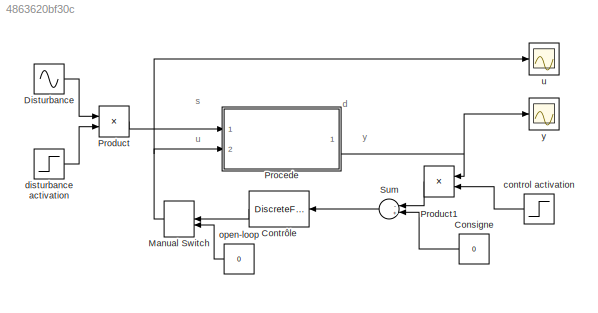
MODEL slx_4863620bf30c
KIND model
CONFIG AbsTol = auto
CONFIG EnableMultiTasking = off
CONFIG FixedStep = Te
CONFIG MaxStep = auto
CONFIG MinStep = auto
CONFIG RelTol = 1e-3
CONFIG SampleTimeConstraint = Unconstrained
CONFIG Solver = ode5
CONFIG SolverName = ode5
CONFIG StartTime = 0.0
CONFIG StopTime = 10
BLOCK [Constant] Consigne
  Value = 0
BLOCK [DiscreteFilter] Contrôle
  Denominator = S
  InputPortMap = u0
  Numerator = R
  Ports = [1, 1]
  SampleTime = Te
BLOCK [Sin] Disturbance
  Amplitude = 0.02
  Frequency = wd
  Ports = [0, 1]
  SampleTime = Te
BLOCK [ManualSwitch] Manual Switch
  CurrentSetting = 0
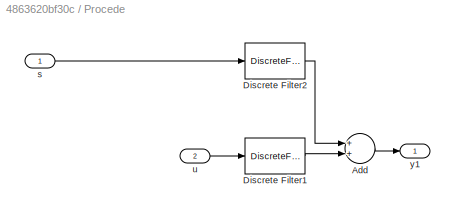
BLOCK [SubSystem] Procede
  Ports = [2, 1]
  RequestExecContextInheritance = off
BLOCK [Sum] Procede/Add
  InputSameDT = off
  OutDataTypeStr = Inherit: Inherit via internal rule
  Ports = [2, 1]
  SaturateOnIntegerOverflow = off
BLOCK [DiscreteFilter] Procede/Discrete Filter1
  Denominator = [1.0000\n   -1.7389\n    1.0408\n   -0.7931\n    2.5618\n   -2.8601\n    1.7853\n   -1.7239\n    2.0897\n   -1.2512\n    1.0092\n   -1.0000\n    0.5016\n    0.0120\n    0.0449]'
  InputPortMap = u0
  Numerator = [     0\n    1.0180\n   -2.1169\n    0.6843\n   -0.3008\n    2.9943\n   -3.0203\n    0.8812\n   -1.5539\n    2.2356\n   -0.7953\n    0.6724\n   -1.0735\n    0.1364\n    0.2454]'
  Ports = [1, 1]
  SampleTime = Te
BLOCK [DiscreteFilter] Procede/Discrete Filter2
  Denominator = [1.0000\n   -1.7389\n    1.0408\n   -0.7931\n    2.5618\n   -2.8601\n    1.7853\n   -1.7239\n    2.0897\n   -1.2512\n    1.0092\n   -1.0000\n    0.5016\n    0.0120\n    0.0449]'
  InputPortMap = u0
  Numerator = [     0\n    1.0180\n   -2.1169\n    0.6843\n   -0.3008\n    2.9943\n   -3.0203\n    0.8812\n   -1.5539\n    2.2356\n   -0.7953\n    0.6724\n   -1.0735\n    0.1364\n    0.2454]'
  Ports = [1, 1]
  SampleTime = Te
BLOCK [Inport] Procede/s
  IconDisplay = Port number
BLOCK [Inport] Procede/u
  IconDisplay = Port number
  Port = 2
BLOCK [Outport] Procede/y1
  IconDisplay = Port number
BLOCK [Product] Product
  InputSameDT = off
  OutDataTypeStr = Inherit: Inherit via internal rule
  Ports = [2, 1]
  SaturateOnIntegerOverflow = off
BLOCK [Product] Product1
  InputSameDT = off
  OutDataTypeStr = Inherit: Inherit via internal rule
  Ports = [2, 1]
  SaturateOnIntegerOverflow = off
BLOCK [Sum] Sum
  IconShape = round
  InputSameDT = off
  Inputs = -+|
  OutDataTypeStr = Inherit: Inherit via internal rule
  Ports = [2, 1]
  SaturateOnIntegerOverflow = off
BLOCK [Step] control activation
  SampleTime = 0
  Time = 4
BLOCK [Step] disturbance activation
  SampleTime = 0
  Time = 2
BLOCK [Constant] open-loop
  Value = 0
BLOCK [Scope] u
  ExtModeUploadOption = log
  Floating = off
  NumInputPorts = 1
  Ports = [1]
  ScopeSpecificationString = C++SS(StrPVP('Location','[6, 430, 1022, 732]'),StrPVP('Open','off'),MxPVP('AxesTitles',53,'struct(''axes1'',''%<SignalLabel>'')'),StrPVP('TimeRange','10'),StrPVP('YMin','-0.5'),StrPVP('YMax','0.5'),StrPVP('SaveToWorkspace','on'),StrPVP('SaveName','u'),StrPVP('DataFormat','Array'),StrPVP('MaxDataPoints','120000'),StrPVP('BlockParamSampleTime','0'),StrPVP('LimitDataPoints','on'),StrPVP('Decimation',...<+43ch>
BLOCK [Scope] y
  Floating = off
  NumInputPorts = 1
  Ports = [1]
  ScopeSpecificationString = Simulink.scopes.TimeScopeBlockCfg('CurrentConfiguration', extmgr.ConfigurationSet(extmgr.Configuration('Core','General UI',true),extmgr.Configuration('Core','Source UI',true),extmgr.Configuration('Sources','WiredSimulink',true,'DataLogging',true,'DataLoggingVariableName','y','DataLoggingSaveFormat','Array','DataLoggingMaxPoints','120000','DataLoggingLimitDataPoints',true,'DataLoggingDecimation','1...<+1756ch>
ANNOTATION (root): d
ANNOTATION (root): s
ANNOTATION (root): u
ANNOTATION (root): y
LINE Consigne:1 -> Sum:2
LINE Contrôle:1 -> Manual Switch:1
LINE Disturbance:1 -> Product:1
NET Manual Switch:1 -> Procede:2, u:1
LINE Procede/Add:1 -> Procede/y1:1
LINE Procede/Discrete Filter1:1 -> Procede/Add:2
LINE Procede/Discrete Filter2:1 -> Procede/Add:1
LINE Procede/s:1 -> Procede/Discrete Filter2:1
LINE Procede/u:1 -> Procede/Discrete Filter1:1
NET Procede:1 -> Product1:1, y:1
LINE Product1:1 -> Sum:1
LINE Product:1 -> Procede:1
LINE Sum:1 -> Contrôle:1
LINE control activation:1 -> Product1:2
LINE disturbance activation:1 -> Product:2
LINE open-loop:1 -> Manual Switch:2
note: NET lines group one-source signal fan-out (src -> all destinations, sorted); 1:1 wires keep LINE
